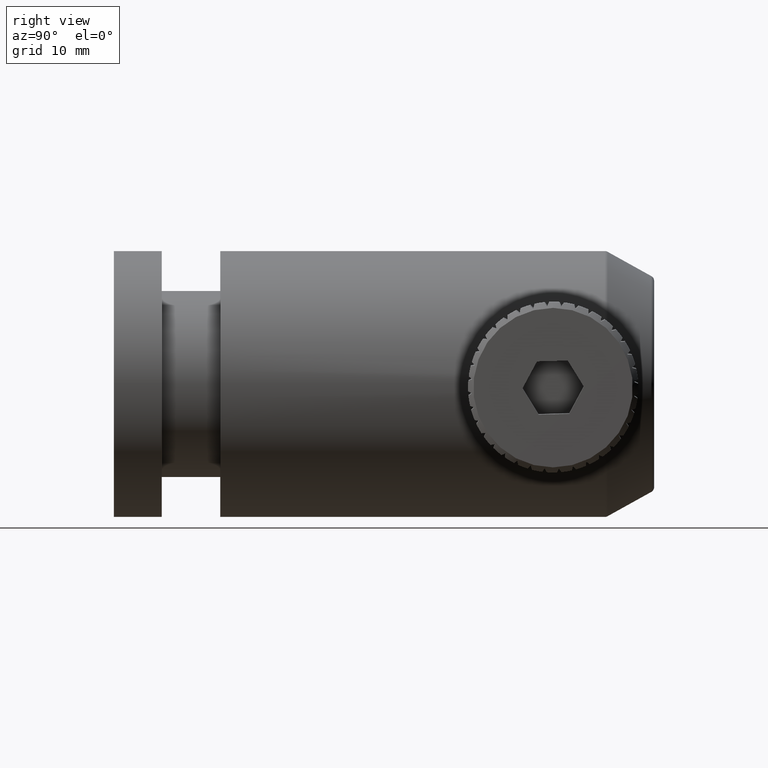
[diagram: clean part render]
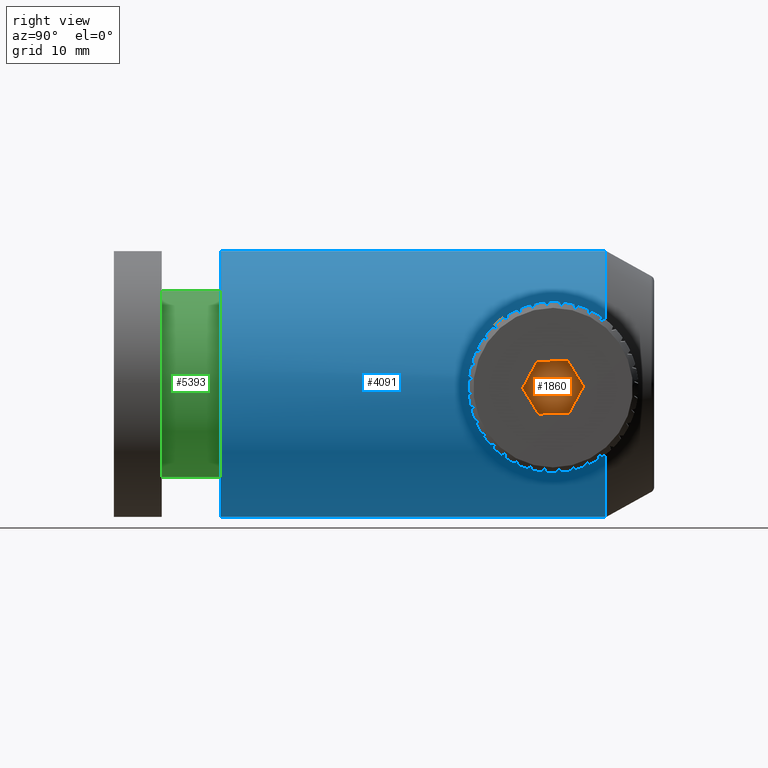
[diagram: same view with three faces highlighted in distinct colors, each labeled with its STEP entity id]
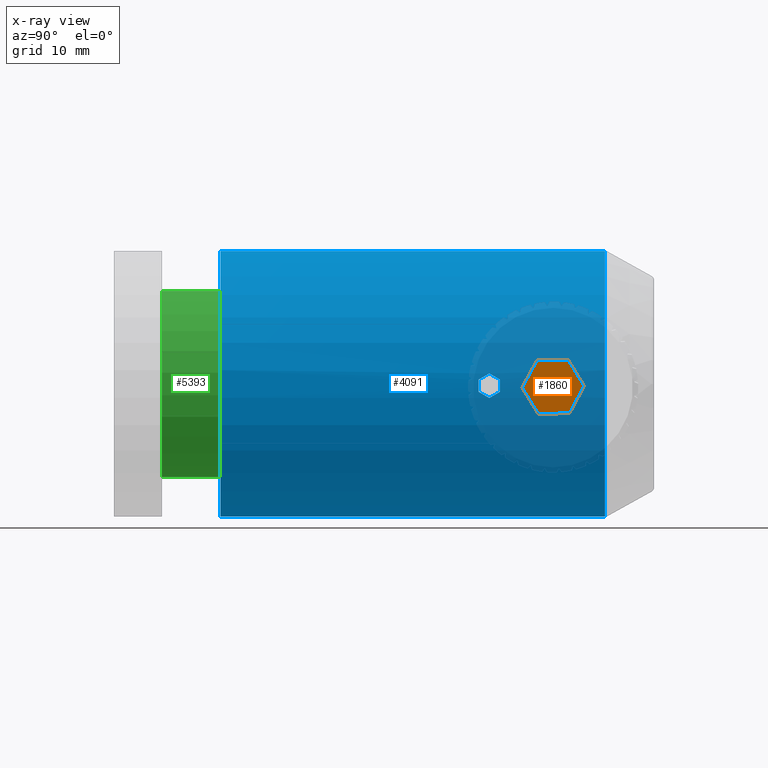
[diagram: x-ray of the same camera — body ghosted, the three highlighted faces saturated]
A machine part, right view with three faces highlighted in distinct colors.
The next image is the same camera in x-ray (body ghosted, the three faces saturated) — at least one of them is partly hidden behind the body in this view.
Their STEP definitions:

[orange] entity #1860 — the highlighted planar face has unit normal (0.9999, 0, -0.0123).
#124 = EDGE_CURVE ( 'NONE', #4225, #3825, #1440, .T. ) ;
#157 = CARTESIAN_POINT ( 'NONE',  ( 16.22763464113645100, 27.32997478958607100, -0.7375647473251915100 ) ) ;
#176 = DIRECTION ( 'NONE',  ( -0.01232375222744001500, 0.0000000000000000000, -0.9999240596820523400 ) ) ;
#182 = FACE_OUTER_BOUND ( 'NONE', #1186, .T. ) ;
#259 = CARTESIAN_POINT ( 'NONE',  ( 16.23425894618500800, 5.632817779779863300E-016, -0.2000821791531860200 ) ) ;
#286 = LINE ( 'NONE', #4506, #1698 ) ;
#304 = CARTESIAN_POINT ( 'NONE',  ( 16.25894495191752400, 28.70053796232627600, 1.802889855162402600 ) ) ;
#578 = ORIENTED_EDGE ( 'NONE', *, *, #1347, .T. ) ;
#805 = VERTEX_POINT ( 'NONE', #5314 ) ;
#865 = DIRECTION ( 'NONE',  ( -0.01049024919323059300, 0.5248057570039899000, -0.8511573721042031700 ) ) ;
#1073 = DIRECTION ( 'NONE',  ( 0.9999240596820524500, 3.469446951953614200E-017, -0.01232375222744001700 ) ) ;
#1186 = EDGE_LOOP ( 'NONE', ( #578, #2772, #3154, #4894, #4717, #1922 ) ) ;
#1216 = VERTEX_POINT ( 'NONE', #2883 ) ;
#1280 = EDGE_CURVE ( 'NONE', #1216, #4225, #4178, .T. ) ;
#1347 = EDGE_CURVE ( 'NONE', #2360, #4367, #3131, .T. ) ;
#1440 = LINE ( 'NONE', #4718, #4036 ) ;
#1506 = EDGE_CURVE ( 'NONE', #3825, #2360, #3404, .T. ) ;
#1698 = VECTOR ( 'NONE', #2694, 1000.000000000000000 ) ;
#1776 = VECTOR ( 'NONE', #5661, 1000.000000000000000 ) ;
#1860 = ADVANCED_FACE ( 'NONE', ( #182 ), #3706, .T. ) ;
#1922 = ORIENTED_EDGE ( 'NONE', *, *, #1506, .T. ) ;
#2011 = CARTESIAN_POINT ( 'NONE',  ( 16.22763464113645100, 27.32997478958607100, -0.7375647473251912800 ) ) ;
#2102 = DIRECTION ( 'NONE',  ( 0.0003559606214878104300, 0.9995827670377592800, 0.02888191706193988700 ) ) ;
#2142 = DIRECTION ( 'NONE',  ( 0.01049024919323180000, -0.5248057570039901300, 0.8511573721042030600 ) ) ;
#2171 = VECTOR ( 'NONE', #2142, 1000.000000000000100 ) ;
#2360 = VERTEX_POINT ( 'NONE', #304 ) ;
#2522 = CARTESIAN_POINT ( 'NONE',  ( 16.25688981231115400, 22.92944416606066600, 1.636140029258171600 ) ) ;
#2588 = CARTESIAN_POINT ( 'NONE',  ( 16.28820012309223100, 24.30000733880087400, 4.176594631745765600 ) ) ;
#2694 = DIRECTION ( 'NONE',  ( -0.0003559606214890118400, -0.9995827670377592800, -0.02888191706193989400 ) ) ;
#2772 = ORIENTED_EDGE ( 'NONE', *, *, #4877, .T. ) ;
#2883 = CARTESIAN_POINT ( 'NONE',  ( 16.25688981231115400, 22.92944416606066900, 1.636140029258171100 ) ) ;
#3131 = LINE ( 'NONE', #4290, #2171 ) ;
#3154 = ORIENTED_EDGE ( 'NONE', *, *, #4104, .T. ) ;
#3201 = DIRECTION ( 'NONE',  ( 0.01084620981471842700, 0.4747770100337681500, 0.8800392891661430500 ) ) ;
#3234 = CARTESIAN_POINT ( 'NONE',  ( 16.28922769289542000, 27.18555423693368700, 4.259969544697882200 ) ) ;
#3404 = LINE ( 'NONE', #157, #3954 ) ;
#3604 = VECTOR ( 'NONE', #865, 1000.000000000000100 ) ;
#3706 = PLANE ( 'NONE',  #5352 ) ;
#3825 = VERTEX_POINT ( 'NONE', #2011 ) ;
#3954 = VECTOR ( 'NONE', #3201, 999.9999999999998900 ) ;
#3965 = LINE ( 'NONE', #2588, #1776 ) ;
#4036 = VECTOR ( 'NONE', #2102, 1000.000000000000000 ) ;
#4104 = EDGE_CURVE ( 'NONE', #805, #1216, #3965, .T. ) ;
#4178 = LINE ( 'NONE', #2522, #3604 ) ;
#4225 = VERTEX_POINT ( 'NONE', #4847 ) ;
#4290 = CARTESIAN_POINT ( 'NONE',  ( 16.25894495191752400, 28.70053796232628000, 1.802889855162402200 ) ) ;
#4367 = VERTEX_POINT ( 'NONE', #3234 ) ;
#4506 = CARTESIAN_POINT ( 'NONE',  ( 16.28922769289542000, 27.18555423693368700, 4.259969544697883100 ) ) ;
#4717 = ORIENTED_EDGE ( 'NONE', *, *, #124, .T. ) ;
#4718 = CARTESIAN_POINT ( 'NONE',  ( 16.22660707133326600, 24.44442789145326200, -0.8209396602773084700 ) ) ;
#4847 = CARTESIAN_POINT ( 'NONE',  ( 16.22660707133326600, 24.44442789145326200, -0.8209396602773093600 ) ) ;
#4877 = EDGE_CURVE ( 'NONE', #4367, #805, #286, .T. ) ;
#4894 = ORIENTED_EDGE ( 'NONE', *, *, #1280, .T. ) ;
#5314 = CARTESIAN_POINT ( 'NONE',  ( 16.28820012309223100, 24.30000733880087400, 4.176594631745765600 ) ) ;
#5352 = AXIS2_PLACEMENT_3D ( 'NONE', #259, #1073, #176 ) ;
#5661 = DIRECTION ( 'NONE',  ( -0.01084620981471842400, -0.4747770100337681000, -0.8800392891661431600 ) ) ;

[blue] entity #4091 — the highlighted cylindrical surface (partial cylindrical patch) has radius 12.5 mm, axis along (-0, -1, -0).
#81 = VERTEX_POINT ( 'NONE', #2502 ) ;
#83 = ORIENTED_EDGE ( 'NONE', *, *, #1394, .T. ) ;
#106 = CARTESIAN_POINT ( 'NONE',  ( 7.228247218029016700, 18.81499106419347100, 2.408196927926556700 ) ) ;
#203 = EDGE_CURVE ( 'NONE', #5535, #81, #3008, .T. ) ;
#235 = DIRECTION ( 'NONE',  ( 0.0000000000000000000, -6.106226635438322300E-015, 1.000000000000000000 ) ) ;
#328 = CARTESIAN_POINT ( 'NONE',  ( 7.185108663971711000, 19.48223318008238200, 0.8686786916715139000 ) ) ;
#342 = CARTESIAN_POINT ( 'NONE',  ( 7.164682143108138700, 19.81499106419347800, 0.6767979976060770600 ) ) ;
#344 = EDGE_CURVE ( 'NONE', #3418, #4532, #4883, .T. ) ;
#394 = AXIS2_PLACEMENT_3D ( 'NONE', #2185, #4742, #2586 ) ;
#524 = AXIS2_PLACEMENT_3D ( 'NONE', #3018, #4412, #5646 ) ;
#648 = CARTESIAN_POINT ( 'NONE',  ( 7.164682143108138700, 19.81499106419347800, 0.6767979976060770600 ) ) ;
#960 =( BOUNDED_CURVE ( )  B_SPLINE_CURVE ( 3, ( #342, #328, #1262, #3915 ),
 .UNSPECIFIED., .F., .F. ) 
 B_SPLINE_CURVE_WITH_KNOTS ( ( 4, 4 ),
 ( 4.618658185137848100, 4.664965617457035300 ),
 .UNSPECIFIED. ) 
 CURVE ( )  GEOMETRIC_REPRESENTATION_ITEM ( )  RATIONAL_B_SPLINE_CURVE ( ( 1.000000000000000000, 0.9998213097924517600, 0.9998213097924517600, 1.000000000000000000 ) ) 
 REPRESENTATION_ITEM ( '' )  );
#1025 = CARTESIAN_POINT ( 'NONE',  ( -5.265086014860968600, 30.68542805009477100, -10.50000000000008000 ) ) ;
#1040 = CARTESIAN_POINT ( 'NONE',  ( 7.185108663971711000, 20.14774894830458500, 0.8686786916715183400 ) ) ;
#1085 = ORIENTED_EDGE ( 'NONE', *, *, #2226, .F. ) ;
#1140 = VECTOR ( 'NONE', #2850, 1000.000000000000000 ) ;
#1262 = CARTESIAN_POINT ( 'NONE',  ( 7.201087355624660600, 19.14884027270122500, 1.060980862545082100 ) ) ;
#1391 = CARTESIAN_POINT ( 'NONE',  ( -5.265086014860968600, 18.81499106419346700, 2.000000000000000000 ) ) ;
#1392 = EDGE_LOOP ( 'NONE', ( #3169, #3777, #5133, #3704, #4562, #1961 ) ) ;
#1394 = EDGE_CURVE ( 'NONE', #1938, #1955, #3534, .T. ) ;
#1430 = CARTESIAN_POINT ( 'NONE',  ( 7.228247218029017600, 20.81499106419346400, 2.408196927926578900 ) ) ;
#1484 = CARTESIAN_POINT ( 'NONE',  ( 7.212609652359801300, 20.81499106419347500, 1.253601422682305600 ) ) ;
#1485 = ORIENTED_EDGE ( 'NONE', *, *, #1925, .F. ) ;
#1509 = CARTESIAN_POINT ( 'NONE',  ( 7.201087355624660600, 20.48114185568572800, 1.060980862545086700 ) ) ;
#1573 = EDGE_CURVE ( 'NONE', #3690, #1938, #3470, .T. ) ;
#1643 = CARTESIAN_POINT ( 'NONE',  ( -5.265086014860966800, -5.485008935806528800, 14.50000000000008000 ) ) ;
#1706 = FACE_BOUND ( 'NONE', #1392, .T. ) ;
#1800 = CIRCLE ( 'NONE', #394, 12.50000000000008000 ) ;
#1925 = EDGE_CURVE ( 'NONE', #3690, #3085, #2759, .T. ) ;
#1938 = VERTEX_POINT ( 'NONE', #5018 ) ;
#1953 = CARTESIAN_POINT ( 'NONE',  ( -5.265086014860968600, -21.01514838293971400, -10.50000000000008000 ) ) ;
#1955 = VERTEX_POINT ( 'NONE', #1643 ) ;
#1961 = ORIENTED_EDGE ( 'NONE', *, *, #344, .T. ) ;
#2037 = VERTEX_POINT ( 'NONE', #5389 ) ;
#2044 = EDGE_CURVE ( 'NONE', #5408, #2037, #2421, .T. ) ;
#2145 = EDGE_LOOP ( 'NONE', ( #3655, #83, #1085, #1485 ) ) ;
#2185 = CARTESIAN_POINT ( 'NONE',  ( -5.265086014860968600, -5.485008935806528800, 2.000000000000000000 ) ) ;
#2194 = EDGE_CURVE ( 'NONE', #4532, #5535, #960, .T. ) ;
#2207 = CARTESIAN_POINT ( 'NONE',  ( 7.212609652359806700, 18.81499106419347800, 1.253601422682298200 ) ) ;
#2226 = EDGE_CURVE ( 'NONE', #3085, #1955, #1800, .T. ) ;
#2244 = FACE_OUTER_BOUND ( 'NONE', #2145, .T. ) ;
#2421 =( BOUNDED_CURVE ( )  B_SPLINE_CURVE ( 3, ( #4986, #4494, #3208, #1430 ),
 .UNSPECIFIED., .F., .T. ) 
 B_SPLINE_CURVE_WITH_KNOTS ( ( 4, 4 ),
 ( 1.479511124514069300, 1.525810701573591800 ),
 .UNSPECIFIED. ) 
 CURVE ( )  GEOMETRIC_REPRESENTATION_ITEM ( )  RATIONAL_B_SPLINE_CURVE ( ( 1.000000000000000000, 0.9998213704080452000, 0.9998213704080452000, 1.000000000000000000 ) ) 
 REPRESENTATION_ITEM ( '' )  );
#2486 = EDGE_CURVE ( 'NONE', #81, #5408, #5096, .T. ) ;
#2502 = CARTESIAN_POINT ( 'NONE',  ( 7.228247218029016700, 18.81499106419347100, 2.408196927926556700 ) ) ;
#2543 = CARTESIAN_POINT ( 'NONE',  ( -5.265086014860966800, -21.01514838293971400, 14.50000000000008000 ) ) ;
#2586 = DIRECTION ( 'NONE',  ( 0.0000000000000000000, 0.0000000000000000000, -1.000000000000000000 ) ) ;
#2729 = DIRECTION ( 'NONE',  ( -7.405661153001363100E-017, -1.000000000000000000, -6.008802049955569500E-015 ) ) ;
#2759 = LINE ( 'NONE', #1953, #1140 ) ;
#2760 = DIRECTION ( 'NONE',  ( 0.0000000000000000000, 0.0000000000000000000, -1.000000000000000000 ) ) ;
#2850 = DIRECTION ( 'NONE',  ( -0.0000000000000000000, -1.000000000000000000, -0.0000000000000000000 ) ) ;
#2870 = AXIS2_PLACEMENT_3D ( 'NONE', #5381, #4980, #2760 ) ;
#3008 = CIRCLE ( 'NONE', #5177, 12.50000000000008000 ) ;
#3018 = CARTESIAN_POINT ( 'NONE',  ( -5.265086014860968600, -21.01514838293971400, 2.000000000000000000 ) ) ;
#3058 = DIRECTION ( 'NONE',  ( -0.0000000000000000000, -1.000000000000000000, -0.0000000000000000000 ) ) ;
#3085 = VERTEX_POINT ( 'NONE', #4005 ) ;
#3139 = DIRECTION ( 'NONE',  ( 0.0000000000000000000, 6.106226635438322300E-015, -1.000000000000000000 ) ) ;
#3143 = CARTESIAN_POINT ( 'NONE',  ( 7.211184659856588300, 19.48221414342749800, 2.793657899099858600 ) ) ;
#3169 = ORIENTED_EDGE ( 'NONE', *, *, #2194, .T. ) ;
#3181 = CARTESIAN_POINT ( 'NONE',  ( 7.195966344243816900, 19.81499106419346000, 2.985988896312195400 ) ) ;
#3208 = CARTESIAN_POINT ( 'NONE',  ( 7.221946873568160000, 20.48116087212816100, 2.601026166576881200 ) ) ;
#3319 = AXIS2_PLACEMENT_3D ( 'NONE', #5090, #4672, #235 ) ;
#3418 = VERTEX_POINT ( 'NONE', #5112 ) ;
#3470 = CIRCLE ( 'NONE', #2870, 12.50000000000008000 ) ;
#3534 = LINE ( 'NONE', #2543, #5401 ) ;
#3655 = ORIENTED_EDGE ( 'NONE', *, *, #1573, .T. ) ;
#3690 = VERTEX_POINT ( 'NONE', #1025 ) ;
#3704 = ORIENTED_EDGE ( 'NONE', *, *, #2044, .T. ) ;
#3777 = ORIENTED_EDGE ( 'NONE', *, *, #203, .T. ) ;
#3795 = EDGE_CURVE ( 'NONE', #2037, #3418, #4591, .T. ) ;
#3915 = CARTESIAN_POINT ( 'NONE',  ( 7.212609652359806700, 18.81499106419347800, 1.253601422682298200 ) ) ;
#4005 = CARTESIAN_POINT ( 'NONE',  ( -5.265086014860968600, -5.485008935806528800, -10.50000000000008000 ) ) ;
#4017 = CARTESIAN_POINT ( 'NONE',  ( 7.195966344243816900, 19.81499106419346000, 2.985988896312195400 ) ) ;
#4091 = ADVANCED_FACE ( 'NONE', ( #1706, #2244 ), #5561, .T. ) ;
#4412 = DIRECTION ( 'NONE',  ( -0.0000000000000000000, -1.000000000000000000, -0.0000000000000000000 ) ) ;
#4471 = CARTESIAN_POINT ( 'NONE',  ( 7.221946873568163600, 19.14882125625877100, 2.601026166576867500 ) ) ;
#4494 = CARTESIAN_POINT ( 'NONE',  ( 7.211184659856586500, 20.14776798495942600, 2.793657899099864400 ) ) ;
#4532 = VERTEX_POINT ( 'NONE', #5577 ) ;
#4562 = ORIENTED_EDGE ( 'NONE', *, *, #3795, .T. ) ;
#4591 = CIRCLE ( 'NONE', #3319, 12.50000000000008000 ) ;
#4672 = DIRECTION ( 'NONE',  ( 7.405661153001269400E-017, 1.000000000000000000, 6.008802049955493800E-015 ) ) ;
#4742 = DIRECTION ( 'NONE',  ( -0.0000000000000000000, -1.000000000000000000, -0.0000000000000000000 ) ) ;
#4883 =( BOUNDED_CURVE ( )  B_SPLINE_CURVE ( 3, ( #1484, #1509, #1040, #648 ),
 .UNSPECIFIED., .F., .T. ) 
 B_SPLINE_CURVE_WITH_KNOTS ( ( 4, 4 ),
 ( 4.759812343312344000, 4.806119775631531300 ),
 .UNSPECIFIED. ) 
 CURVE ( )  GEOMETRIC_REPRESENTATION_ITEM ( )  RATIONAL_B_SPLINE_CURVE ( ( 1.000000000000000000, 0.9998213097924517600, 0.9998213097924517600, 1.000000000000000000 ) ) 
 REPRESENTATION_ITEM ( '' )  );
#4980 = DIRECTION ( 'NONE',  ( -0.0000000000000000000, -1.000000000000000000, -0.0000000000000000000 ) ) ;
#4986 = CARTESIAN_POINT ( 'NONE',  ( 7.195966344243816900, 19.81499106419346000, 2.985988896312195400 ) ) ;
#5018 = CARTESIAN_POINT ( 'NONE',  ( -5.265086014860966800, 30.68542805009477100, 14.50000000000008000 ) ) ;
#5090 = CARTESIAN_POINT ( 'NONE',  ( -5.265086014860968600, 20.81499106419346700, 2.000000000000000000 ) ) ;
#5096 =( BOUNDED_CURVE ( )  B_SPLINE_CURVE ( 3, ( #106, #4471, #3143, #4017 ),
 .UNSPECIFIED., .F., .F. ) 
 B_SPLINE_CURVE_WITH_KNOTS ( ( 4, 4 ),
 ( 1.615781952016199800, 1.662081529075724000 ),
 .UNSPECIFIED. ) 
 CURVE ( )  GEOMETRIC_REPRESENTATION_ITEM ( )  RATIONAL_B_SPLINE_CURVE ( ( 1.000000000000000000, 0.9998213704080452000, 0.9998213704080452000, 1.000000000000000000 ) ) 
 REPRESENTATION_ITEM ( '' )  );
#5112 = CARTESIAN_POINT ( 'NONE',  ( 7.212609652359801300, 20.81499106419347500, 1.253601422682305600 ) ) ;
#5133 = ORIENTED_EDGE ( 'NONE', *, *, #2486, .T. ) ;
#5177 = AXIS2_PLACEMENT_3D ( 'NONE', #1391, #2729, #3139 ) ;
#5381 = CARTESIAN_POINT ( 'NONE',  ( -5.265086014860968600, 30.68542805009477100, 2.000000000000000000 ) ) ;
#5389 = CARTESIAN_POINT ( 'NONE',  ( 7.228247218029017600, 20.81499106419346400, 2.408196927926578900 ) ) ;
#5401 = VECTOR ( 'NONE', #3058, 1000.000000000000000 ) ;
#5408 = VERTEX_POINT ( 'NONE', #3181 ) ;
#5535 = VERTEX_POINT ( 'NONE', #2207 ) ;
#5561 = CYLINDRICAL_SURFACE ( 'NONE', #524, 12.50000000000008000 ) ;
#5577 = CARTESIAN_POINT ( 'NONE',  ( 7.164682143108138700, 19.81499106419347800, 0.6767979976060770600 ) ) ;
#5646 = DIRECTION ( 'NONE',  ( 0.0000000000000000000, 0.0000000000000000000, -1.000000000000000000 ) ) ;

[green] entity #5393 — the highlighted cylindrical surface (partial cylindrical patch) has radius 8.75 mm, axis along (-0, -1, -0).
#13 = CIRCLE ( 'NONE', #5121, 8.750000000000079900 ) ;
#135 = CARTESIAN_POINT ( 'NONE',  ( -5.265086014860968600, -21.01514838293971400, 2.000000000000000000 ) ) ;
#243 = ORIENTED_EDGE ( 'NONE', *, *, #957, .T. ) ;
#294 = VECTOR ( 'NONE', #1873, 1000.000000000000000 ) ;
#388 = ORIENTED_EDGE ( 'NONE', *, *, #1627, .F. ) ;
#610 = VERTEX_POINT ( 'NONE', #761 ) ;
#626 = CYLINDRICAL_SURFACE ( 'NONE', #2496, 8.750000000000079900 ) ;
#637 = CARTESIAN_POINT ( 'NONE',  ( -5.265086014860968600, -21.01514838293971400, -6.750000000000080800 ) ) ;
#668 = CARTESIAN_POINT ( 'NONE',  ( -5.265086014860968600, -5.485008935806521700, 2.000000000000000000 ) ) ;
#738 = DIRECTION ( 'NONE',  ( 0.0000000000000000000, 0.0000000000000000000, -1.000000000000000000 ) ) ;
#761 = CARTESIAN_POINT ( 'NONE',  ( -5.265086014860967700, -5.485008935806521700, 10.75000000000008000 ) ) ;
#957 = EDGE_CURVE ( 'NONE', #610, #4311, #3468, .T. ) ;
#1044 = AXIS2_PLACEMENT_3D ( 'NONE', #668, #1093, #4131 ) ;
#1091 = DIRECTION ( 'NONE',  ( -0.0000000000000000000, -1.000000000000000000, -0.0000000000000000000 ) ) ;
#1093 = DIRECTION ( 'NONE',  ( -0.0000000000000000000, -1.000000000000000000, -0.0000000000000000000 ) ) ;
#1166 = VECTOR ( 'NONE', #1091, 1000.000000000000000 ) ;
#1432 = CARTESIAN_POINT ( 'NONE',  ( -5.265086014860967700, -10.98500893580652300, 10.75000000000008000 ) ) ;
#1627 = EDGE_CURVE ( 'NONE', #1963, #4030, #2992, .T. ) ;
#1842 = ORIENTED_EDGE ( 'NONE', *, *, #2514, .T. ) ;
#1873 = DIRECTION ( 'NONE',  ( -0.0000000000000000000, -1.000000000000000000, -0.0000000000000000000 ) ) ;
#1884 = EDGE_LOOP ( 'NONE', ( #1842, #243, #3450, #388 ) ) ;
#1963 = VERTEX_POINT ( 'NONE', #2035 ) ;
#2035 = CARTESIAN_POINT ( 'NONE',  ( -5.265086014860968600, -5.485008935806521700, -6.750000000000080800 ) ) ;
#2496 = AXIS2_PLACEMENT_3D ( 'NONE', #135, #3221, #3200 ) ;
#2514 = EDGE_CURVE ( 'NONE', #1963, #610, #4738, .T. ) ;
#2992 = LINE ( 'NONE', #637, #1166 ) ;
#3066 = FACE_OUTER_BOUND ( 'NONE', #1884, .T. ) ;
#3200 = DIRECTION ( 'NONE',  ( 0.0000000000000000000, 0.0000000000000000000, -1.000000000000000000 ) ) ;
#3221 = DIRECTION ( 'NONE',  ( -0.0000000000000000000, -1.000000000000000000, -0.0000000000000000000 ) ) ;
#3256 = CARTESIAN_POINT ( 'NONE',  ( -5.265086014860967700, -21.01514838293971400, 10.75000000000008000 ) ) ;
#3368 = CARTESIAN_POINT ( 'NONE',  ( -5.265086014860968600, -10.98500893580652300, -6.750000000000080800 ) ) ;
#3450 = ORIENTED_EDGE ( 'NONE', *, *, #4503, .F. ) ;
#3468 = LINE ( 'NONE', #3256, #294 ) ;
#3788 = CARTESIAN_POINT ( 'NONE',  ( -5.265086014860968600, -10.98500893580652300, 2.000000000000000000 ) ) ;
#4030 = VERTEX_POINT ( 'NONE', #3368 ) ;
#4131 = DIRECTION ( 'NONE',  ( 0.0000000000000000000, 0.0000000000000000000, -1.000000000000000000 ) ) ;
#4213 = DIRECTION ( 'NONE',  ( -0.0000000000000000000, -1.000000000000000000, -0.0000000000000000000 ) ) ;
#4311 = VERTEX_POINT ( 'NONE', #1432 ) ;
#4503 = EDGE_CURVE ( 'NONE', #4030, #4311, #13, .T. ) ;
#4738 = CIRCLE ( 'NONE', #1044, 8.750000000000079900 ) ;
#5121 = AXIS2_PLACEMENT_3D ( 'NONE', #3788, #4213, #738 ) ;
#5393 = ADVANCED_FACE ( 'NONE', ( #3066 ), #626, .T. ) ;